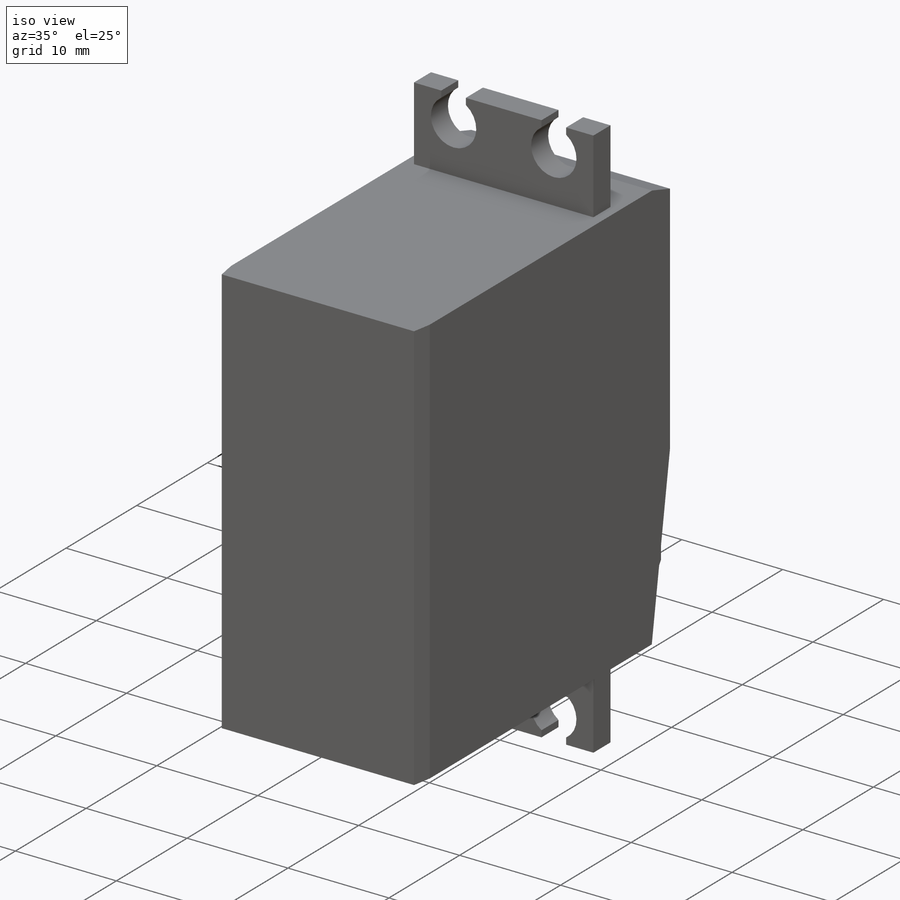
[diagram: iso view]
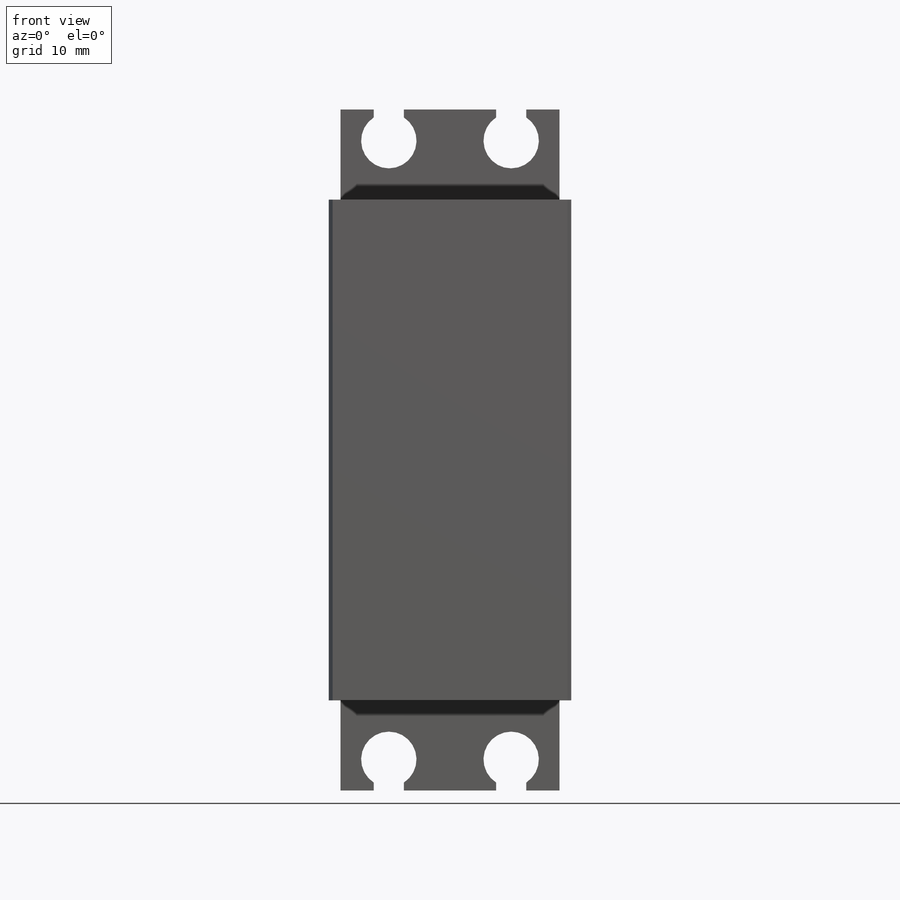
[diagram: front view]
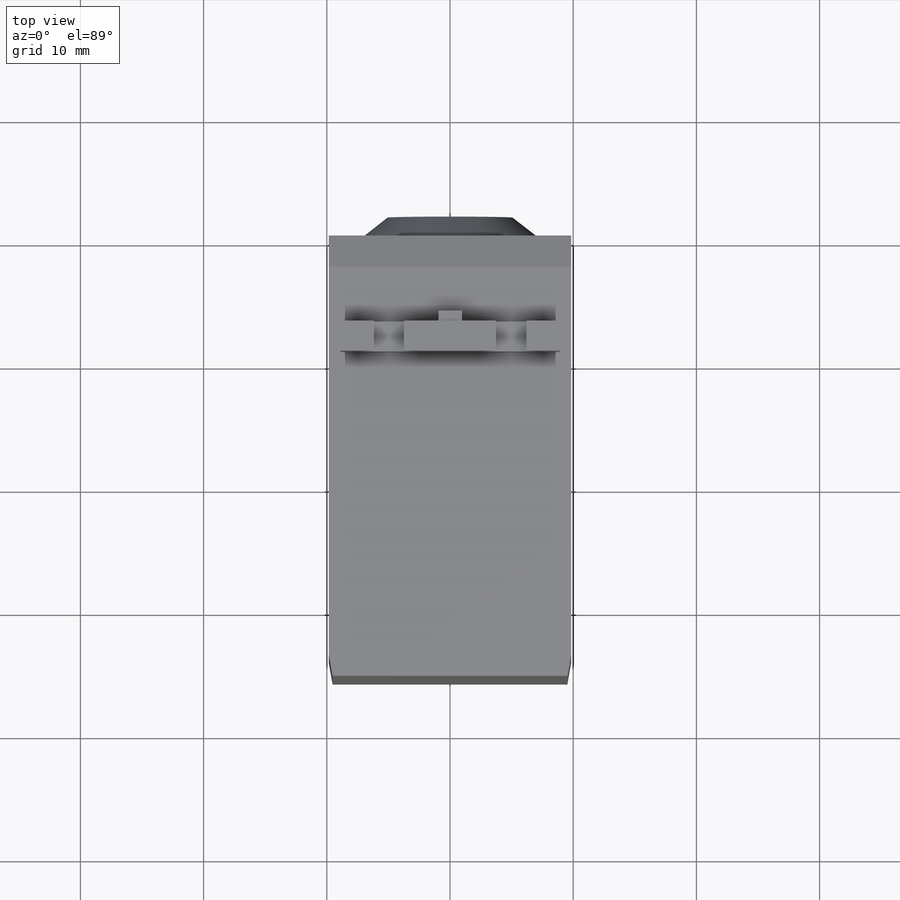
[diagram: top view]
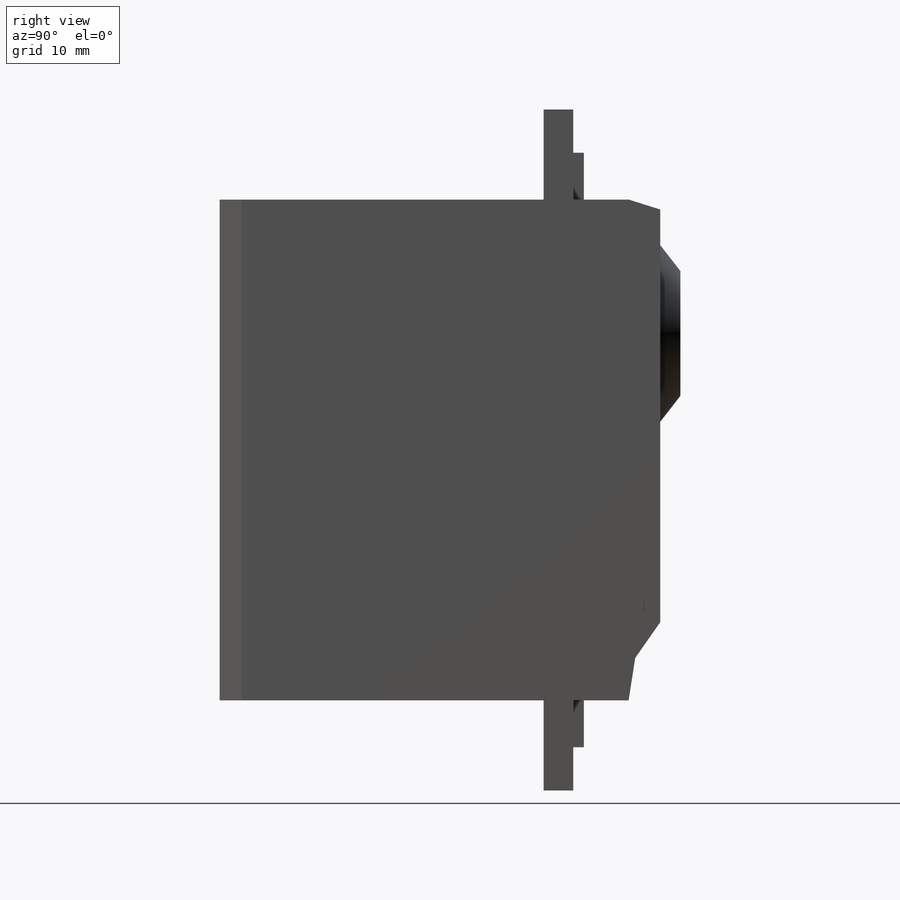
[diagram: right view]
SOLIDWORKS PART (.sldprt)
format: sldprt  version: not decoded by parser v0  size: 322,048 bytes
history: native  units: mm
features: sketch x7, chamfer x6, extrude x5, cut_extrude x2, material x1, plane x1, mirror x1 (+12 scaffold rows collapsed)
feature tree (35):
  scaffold x12  (default folders/planes/origin — collapsed)
  material  "Servo Plastic"
  sketch  "Sketch1"  dims[D1=40.64mm D2=19.685mm]
  extrude  "Extrude1"  Depth=35.7632mm
  chamfer  "Chamfer1"  Distance=1.778mm Angle=10deg
  chamfer  "Chamfer2"  Distance=1.778mm Angle=10deg
  chamfer  "Chamfer3"  Distance=16.51mm Angle=8.85deg
  sketch  "Sketch2"  dims[D1=14.732mm D2=17.907mm D3=22.86mm]
  extrude  "Extrude2"  [1 undecoded]
  chamfer  "Chamfer4"  Distance=3.302mm Angle=35deg
  sketch  "Sketch3"  dims[c1.D1=14.351mm c1.D3=14.351mm c1.D2=10.8585mm c2.D3=9.8425mm]
  extrude  "Extrude3"  Depth=1.6256mm
  chamfer  "Chamfer5"  Distance=2.54mm Angle=17.5deg
  chamfer  "Chamfer6"  Distance=1.6256mm
  sketch  "Sketch4"  dims[D1=5.9182mm]
  cut_extrude  "Cut-Extrude1"  Depth=10mm
  sketch  "Sketch5"  dims[D1=2.413mm D2=17.78mm D3=26.289mm]
  extrude  "Extrude4"  Depth=7.3152mm
  sketch  "Sketch6"  dims[c1.D1=4.4958mm c1.D4=4.4958mm c1.D2=4.7879mm c1.D3=3.9243mm c2.D4=9.9314mm c2.D5=2.4384mm c2.D6=2.4384mm]
  cut_extrude  "Cut-Extrude2"  [1 undecoded]
  sketch  "Sketch8"  dims[D1=1.905mm D2=3.81mm]
  extrude  "Extrude5"  Depth=0.8636mm
  plane  "Plane1"
  mirror  "Mirror1"
decode coverage: 18 of 21 modeling features carry decoded parameters
note: 2 parameter values undecoded
note: suppression state not decoded; provenance and decode notes live in map.json
